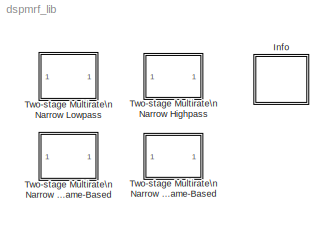
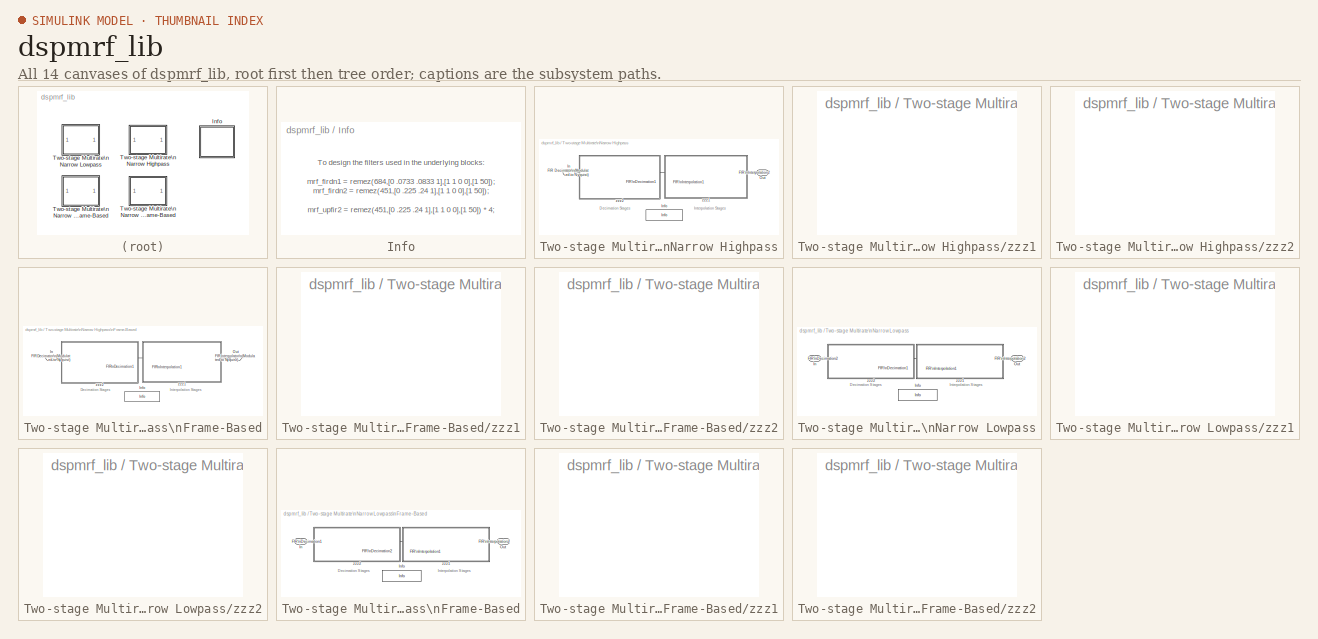
[diagram: thumbnail index - all 14 canvases of the model, root first then tree order]
MODEL dspmrf_lib
KIND library
CONFIG PreLoadFcn = load dspmrf_coeffs
BLOCK [SubSystem] Info
  MaskDisplay = disp('Filters')
  MaskIconFrame = on
  MaskIconOpaque = on
  MaskIconRotate = none
  MaskIconUnits = autoscale
  Ports = [0, 0, 0, 0, 0]
  ShowPortLabels = on
  TreatAsAtomicUnit = off
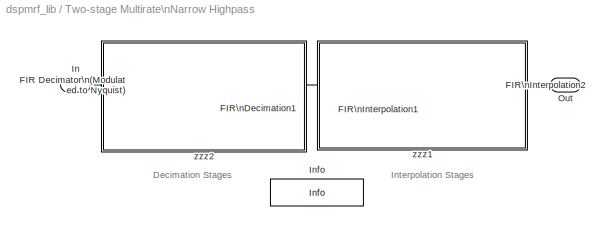
BLOCK [SubSystem] Two-stage Multirate\nNarrow Highpass
  Ports = [1, 1, 0, 0, 0]
  ShowPortLabels = on
  TreatAsAtomicUnit = off
BLOCK [Reference] Two-stage Multirate\nNarrow Highpass/FIR Decimator\n(Modulated to Nyquist)  REF=dspmlti3/FIR\nDecimation
  D = 12
  Ports = [1, 1, 0, 0, 0]
  SourceBlock = dspmlti3/FIR\nDecimation
  SourceType = FIR Decimation
  framing = Maintain input frame size
  h = mrf_firdn1 .* ((-1).^(0:684))
BLOCK [Reference] Two-stage Multirate\nNarrow Highpass/FIR\nDecimation1  REF=dspmlti3/FIR\nDecimation
  D = 4
  Ports = [1, 1, 0, 0, 0]
  SourceBlock = dspmlti3/FIR\nDecimation
  SourceType = FIR Decimation
  framing = Maintain input frame size
  h = mrf_firdn2
BLOCK [Reference] Two-stage Multirate\nNarrow Highpass/FIR\nInterpolation1  REF=dspmlti3/FIR\nInterpolation
  L = 4
  Ports = [1, 1, 0, 0, 0]
  SourceBlock = dspmlti3/FIR\nInterpolation
  SourceType = FIR Interpolation
  framing = Maintain input frame size
  h = mrf_upfir2
BLOCK [Reference] Two-stage Multirate\nNarrow Highpass/FIR\nInterpolation2  REF=dspmlti3/FIR\nInterpolation
  L = 12
  Ports = [1, 1, 0, 0, 0]
  SourceBlock = dspmlti3/FIR\nInterpolation
  SourceType = FIR Interpolation
  framing = Maintain input frame size
  h = mrf_upfir1 .* ((-1).^(0:684))
BLOCK [Inport] Two-stage Multirate\nNarrow Highpass/In
  Interpolate = on
  Port = 1
BLOCK [Reference] Two-stage Multirate\nNarrow Highpass/Info  REF=dspmrf_lib/Info
  Ports = [0, 0, 0, 0, 0]
  SourceBlock = dspmrf_lib/Info
BLOCK [Outport] Two-stage Multirate\nNarrow Highpass/Out
  InitialOutput = []
  OutputWhenDisabled = held
  Port = 1
BLOCK [SubSystem] Two-stage Multirate\nNarrow Highpass/zzz1
  MaskDisplay = disp('')
  MaskIconFrame = on
  MaskIconOpaque = on
  MaskIconRotate = none
  MaskIconUnits = autoscale
  OpenFcn = dspmsmrff;
  Ports = [0, 0, 0, 0, 0]
  ShowPortLabels = on
  TreatAsAtomicUnit = off
BLOCK [SubSystem] Two-stage Multirate\nNarrow Highpass/zzz2
  MaskDisplay = disp('')
  MaskIconFrame = on
  MaskIconOpaque = on
  MaskIconRotate = none
  MaskIconUnits = autoscale
  OpenFcn = dspmsmrff;
  Ports = [0, 0, 0, 0, 0]
  ShowPortLabels = on
  TreatAsAtomicUnit = off
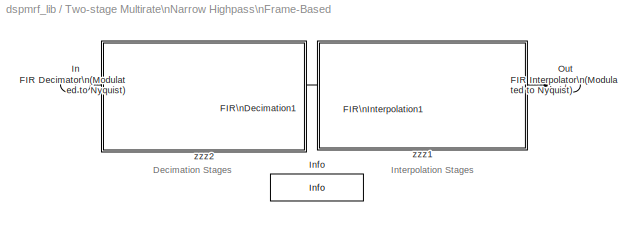
BLOCK [SubSystem] Two-stage Multirate\nNarrow Highpass\nFrame-Based
  Ports = [1, 1, 0, 0, 0]
  ShowPortLabels = on
  TreatAsAtomicUnit = off
BLOCK [Reference] Two-stage Multirate\nNarrow Highpass\nFrame-Based/FIR Decimator\n(Modulated to Nyquist)  REF=dspmlti3/FIR\nDecimation
  D = 12
  Ports = [1, 1, 0, 0, 0]
  SourceBlock = dspmlti3/FIR\nDecimation
  SourceType = FIR Decimation
  framing = Maintain input frame rate
  h = mrf_firdn1 .* ((-1).^(0:684))
BLOCK [Reference] Two-stage Multirate\nNarrow Highpass\nFrame-Based/FIR Interpolator\n(Modulated to Nyquist)  REF=dspmlti3/FIR\nInterpolation
  L = 12
  Ports = [1, 1, 0, 0, 0]
  SourceBlock = dspmlti3/FIR\nInterpolation
  SourceType = FIR Interpolation
  framing = Maintain input frame rate
  h = mrf_upfir1 .* ((-1).^(0:684))
BLOCK [Reference] Two-stage Multirate\nNarrow Highpass\nFrame-Based/FIR\nDecimation1  REF=dspmlti3/FIR\nDecimation
  D = 4
  Ports = [1, 1, 0, 0, 0]
  SourceBlock = dspmlti3/FIR\nDecimation
  SourceType = FIR Decimation
  framing = Maintain input frame rate
  h = mrf_firdn2
BLOCK [Reference] Two-stage Multirate\nNarrow Highpass\nFrame-Based/FIR\nInterpolation1  REF=dspmlti3/FIR\nInterpolation
  L = 4
  Ports = [1, 1, 0, 0, 0]
  SourceBlock = dspmlti3/FIR\nInterpolation
  SourceType = FIR Interpolation
  framing = Maintain input frame rate
  h = mrf_upfir2
BLOCK [Inport] Two-stage Multirate\nNarrow Highpass\nFrame-Based/In
  Interpolate = on
  Port = 1
BLOCK [Reference] Two-stage Multirate\nNarrow Highpass\nFrame-Based/Info  REF=dspmrf_lib/Info
  Ports = [0, 0, 0, 0, 0]
  SourceBlock = dspmrf_lib/Info
BLOCK [Outport] Two-stage Multirate\nNarrow Highpass\nFrame-Based/Out
  InitialOutput = []
  OutputWhenDisabled = held
  Port = 1
BLOCK [SubSystem] Two-stage Multirate\nNarrow Highpass\nFrame-Based/zzz1
  MaskDisplay = disp('')
  MaskIconFrame = on
  MaskIconOpaque = on
  MaskIconRotate = none
  MaskIconUnits = autoscale
  OpenFcn = dspmsmrff;
  Ports = [0, 0, 0, 0, 0]
  ShowPortLabels = on
  TreatAsAtomicUnit = off
BLOCK [SubSystem] Two-stage Multirate\nNarrow Highpass\nFrame-Based/zzz2
  MaskDisplay = disp('')
  MaskIconFrame = on
  MaskIconOpaque = on
  MaskIconRotate = none
  MaskIconUnits = autoscale
  OpenFcn = dspmsmrff;
  Ports = [0, 0, 0, 0, 0]
  ShowPortLabels = on
  TreatAsAtomicUnit = off
BLOCK [SubSystem] Two-stage Multirate\nNarrow Lowpass
  Ports = [1, 1, 0, 0, 0]
  ShowPortLabels = on
  TreatAsAtomicUnit = off
BLOCK [Reference] Two-stage Multirate\nNarrow Lowpass/FIR\nDecimation1  REF=dspmlti3/FIR\nDecimation
  D = 4
  Ports = [1, 1, 0, 0, 0]
  SourceBlock = dspmlti3/FIR\nDecimation
  SourceType = FIR Decimation
  framing = Maintain input frame size
  h = mrf_firdn2
BLOCK [Reference] Two-stage Multirate\nNarrow Lowpass/FIR\nDecimation2  REF=dspmlti3/FIR\nDecimation
  D = 12
  Ports = [1, 1, 0, 0, 0]
  SourceBlock = dspmlti3/FIR\nDecimation
  SourceType = FIR Decimation
  framing = Maintain input frame size
  h = mrf_firdn1
BLOCK [Reference] Two-stage Multirate\nNarrow Lowpass/FIR\nInterpolation1  REF=dspmlti3/FIR\nInterpolation
  L = 4
  Ports = [1, 1, 0, 0, 0]
  SourceBlock = dspmlti3/FIR\nInterpolation
  SourceType = FIR Interpolation
  framing = Maintain input frame size
  h = mrf_upfir2
BLOCK [Reference] Two-stage Multirate\nNarrow Lowpass/FIR\nInterpolation2  REF=dspmlti3/FIR\nInterpolation
  L = 12
  Ports = [1, 1, 0, 0, 0]
  SourceBlock = dspmlti3/FIR\nInterpolation
  SourceType = FIR Interpolation
  framing = Maintain input frame size
  h = mrf_upfir1
BLOCK [Inport] Two-stage Multirate\nNarrow Lowpass/In
  Interpolate = on
  Port = 1
BLOCK [Reference] Two-stage Multirate\nNarrow Lowpass/Info  REF=dspmrf_lib/Info
  Ports = [0, 0, 0, 0, 0]
  SourceBlock = dspmrf_lib/Info
BLOCK [Outport] Two-stage Multirate\nNarrow Lowpass/Out
  InitialOutput = []
  OutputWhenDisabled = held
  Port = 1
BLOCK [SubSystem] Two-stage Multirate\nNarrow Lowpass/zzz1
  MaskDisplay = disp('')
  MaskIconFrame = on
  MaskIconOpaque = on
  MaskIconRotate = none
  MaskIconUnits = autoscale
  OpenFcn = dspmsmrff;
  Ports = [0, 0, 0, 0, 0]
  ShowPortLabels = on
  TreatAsAtomicUnit = off
BLOCK [SubSystem] Two-stage Multirate\nNarrow Lowpass/zzz2
  MaskDisplay = disp('')
  MaskIconFrame = on
  MaskIconOpaque = on
  MaskIconRotate = none
  MaskIconUnits = autoscale
  OpenFcn = dspmsmrff;
  Ports = [0, 0, 0, 0, 0]
  ShowPortLabels = on
  TreatAsAtomicUnit = off
BLOCK [SubSystem] Two-stage Multirate\nNarrow Lowpass\nFrame-Based
  Ports = [1, 1, 0, 0, 0]
  ShowPortLabels = on
  TreatAsAtomicUnit = off
BLOCK [Reference] Two-stage Multirate\nNarrow Lowpass\nFrame-Based/FIR\nDecimation1  REF=dspmlti3/FIR\nDecimation
  D = 12
  Ports = [1, 1, 0, 0, 0]
  SourceBlock = dspmlti3/FIR\nDecimation
  SourceType = FIR Decimation
  framing = Maintain input frame rate
  h = mrf_firdn1
BLOCK [Reference] Two-stage Multirate\nNarrow Lowpass\nFrame-Based/FIR\nDecimation2  REF=dspmlti3/FIR\nDecimation
  D = 4
  Ports = [1, 1, 0, 0, 0]
  SourceBlock = dspmlti3/FIR\nDecimation
  SourceType = FIR Decimation
  framing = Maintain input frame rate
  h = mrf_firdn2
BLOCK [Reference] Two-stage Multirate\nNarrow Lowpass\nFrame-Based/FIR\nInterpolation1  REF=dspmlti3/FIR\nInterpolation
  L = 4
  Ports = [1, 1, 0, 0, 0]
  SourceBlock = dspmlti3/FIR\nInterpolation
  SourceType = FIR Interpolation
  framing = Maintain input frame rate
  h = mrf_upfir2
BLOCK [Reference] Two-stage Multirate\nNarrow Lowpass\nFrame-Based/FIR\nInterpolation2  REF=dspmlti3/FIR\nInterpolation
  L = 12
  Ports = [1, 1, 0, 0, 0]
  SourceBlock = dspmlti3/FIR\nInterpolation
  SourceType = FIR Interpolation
  framing = Maintain input frame rate
  h = mrf_upfir1
BLOCK [Inport] Two-stage Multirate\nNarrow Lowpass\nFrame-Based/In
  Interpolate = on
  Port = 1
BLOCK [Reference] Two-stage Multirate\nNarrow Lowpass\nFrame-Based/Info  REF=dspmrf_lib/Info
  Ports = [0, 0, 0, 0, 0]
  SourceBlock = dspmrf_lib/Info
BLOCK [Outport] Two-stage Multirate\nNarrow Lowpass\nFrame-Based/Out
  InitialOutput = []
  OutputWhenDisabled = held
  Port = 1
BLOCK [SubSystem] Two-stage Multirate\nNarrow Lowpass\nFrame-Based/zzz1
  MaskDisplay = disp('')
  MaskIconFrame = on
  MaskIconOpaque = on
  MaskIconRotate = none
  MaskIconUnits = autoscale
  OpenFcn = dspmsmrff;
  Ports = [0, 0, 0, 0, 0]
  ShowPortLabels = on
  TreatAsAtomicUnit = off
BLOCK [SubSystem] Two-stage Multirate\nNarrow Lowpass\nFrame-Based/zzz2
  MaskDisplay = disp('')
  MaskIconFrame = on
  MaskIconOpaque = on
  MaskIconRotate = none
  MaskIconUnits = autoscale
  OpenFcn = dspmsmrff;
  Ports = [0, 0, 0, 0, 0]
  ShowPortLabels = on
  TreatAsAtomicUnit = off
LINE Two-stage Multirate\nNarrow Highpass/FIR Decimator\n(Modulated to Nyquist):1 -> Two-stage Multirate\nNarrow Highpass/FIR\nDecimation1:1
LINE Two-stage Multirate\nNarrow Highpass/FIR\nDecimation1:1 -> Two-stage Multirate\nNarrow Highpass/FIR\nInterpolation1:1
LINE Two-stage Multirate\nNarrow Highpass/FIR\nInterpolation1:1 -> Two-stage Multirate\nNarrow Highpass/FIR\nInterpolation2:1
LINE Two-stage Multirate\nNarrow Highpass/FIR\nInterpolation2:1 -> Two-stage Multirate\nNarrow Highpass/Out:1
LINE Two-stage Multirate\nNarrow Highpass/In:1 -> Two-stage Multirate\nNarrow Highpass/FIR Decimator\n(Modulated to Nyquist):1
LINE Two-stage Multirate\nNarrow Highpass\nFrame-Based/FIR Decimator\n(Modulated to Nyquist):1 -> Two-stage Multirate\nNarrow Highpass\nFrame-Based/FIR\nDecimation1:1
LINE Two-stage Multirate\nNarrow Highpass\nFrame-Based/FIR Interpolator\n(Modulated to Nyquist):1 -> Two-stage Multirate\nNarrow Highpass\nFrame-Based/Out:1
LINE Two-stage Multirate\nNarrow Highpass\nFrame-Based/FIR\nDecimation1:1 -> Two-stage Multirate\nNarrow Highpass\nFrame-Based/FIR\nInterpolation1:1
LINE Two-stage Multirate\nNarrow Highpass\nFrame-Based/FIR\nInterpolation1:1 -> Two-stage Multirate\nNarrow Highpass\nFrame-Based/FIR Interpolator\n(Modulated to Nyquist):1
LINE Two-stage Multirate\nNarrow Highpass\nFrame-Based/In:1 -> Two-stage Multirate\nNarrow Highpass\nFrame-Based/FIR Decimator\n(Modulated to Nyquist):1
LINE Two-stage Multirate\nNarrow Lowpass/FIR\nDecimation1:1 -> Two-stage Multirate\nNarrow Lowpass/FIR\nInterpolation1:1
LINE Two-stage Multirate\nNarrow Lowpass/FIR\nDecimation2:1 -> Two-stage Multirate\nNarrow Lowpass/FIR\nDecimation1:1
LINE Two-stage Multirate\nNarrow Lowpass/FIR\nInterpolation1:1 -> Two-stage Multirate\nNarrow Lowpass/FIR\nInterpolation2:1
LINE Two-stage Multirate\nNarrow Lowpass/FIR\nInterpolation2:1 -> Two-stage Multirate\nNarrow Lowpass/Out:1
LINE Two-stage Multirate\nNarrow Lowpass/In:1 -> Two-stage Multirate\nNarrow Lowpass/FIR\nDecimation2:1
LINE Two-stage Multirate\nNarrow Lowpass\nFrame-Based/FIR\nDecimation1:1 -> Two-stage Multirate\nNarrow Lowpass\nFrame-Based/FIR\nDecimation2:1
LINE Two-stage Multirate\nNarrow Lowpass\nFrame-Based/FIR\nDecimation2:1 -> Two-stage Multirate\nNarrow Lowpass\nFrame-Based/FIR\nInterpolation1:1
LINE Two-stage Multirate\nNarrow Lowpass\nFrame-Based/FIR\nInterpolation1:1 -> Two-stage Multirate\nNarrow Lowpass\nFrame-Based/FIR\nInterpolation2:1
LINE Two-stage Multirate\nNarrow Lowpass\nFrame-Based/FIR\nInterpolation2:1 -> Two-stage Multirate\nNarrow Lowpass\nFrame-Based/Out:1
LINE Two-stage Multirate\nNarrow Lowpass\nFrame-Based/In:1 -> Two-stage Multirate\nNarrow Lowpass\nFrame-Based/FIR\nDecimation1:1
